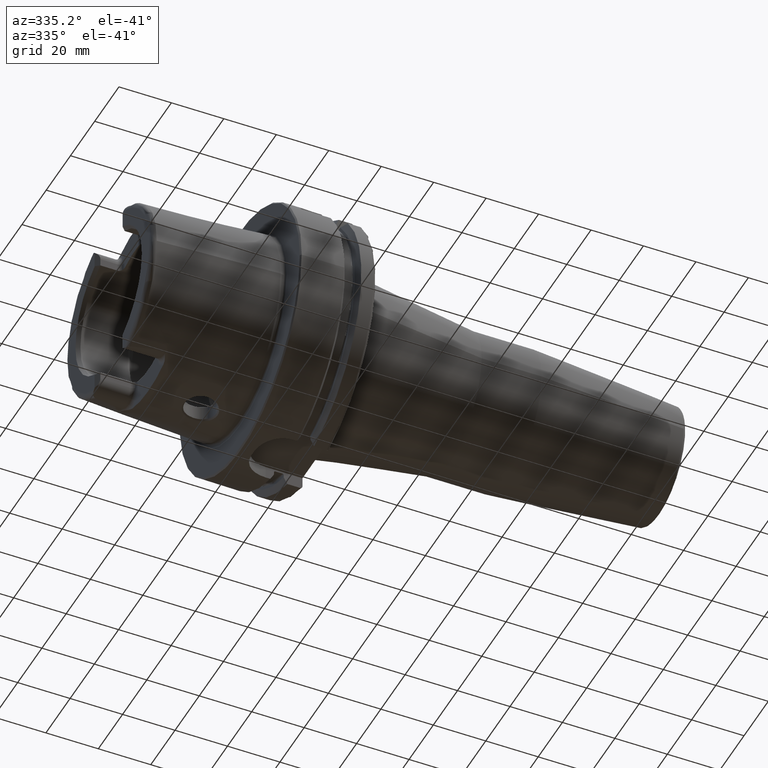
[diagram: clean part render]
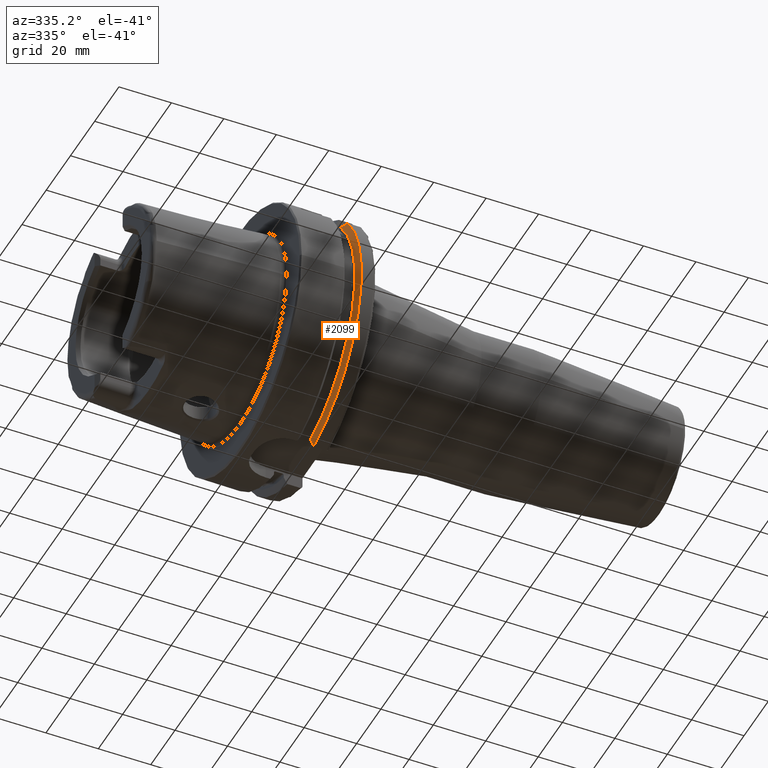
[diagram: same view with one face highlighted and labeled with its STEP entity id]
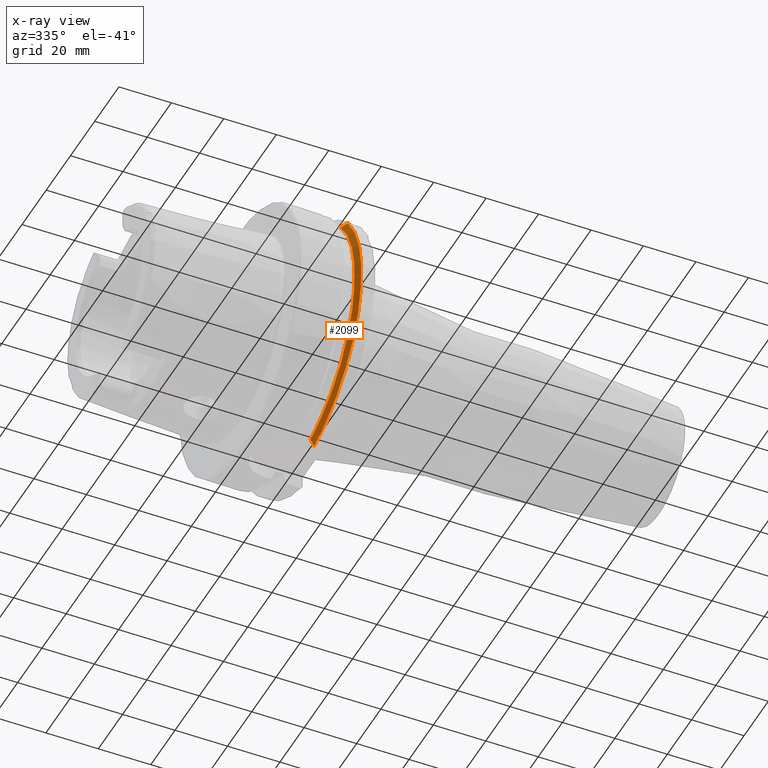
[diagram: x-ray of the same camera — body ghosted, the highlighted face saturated]
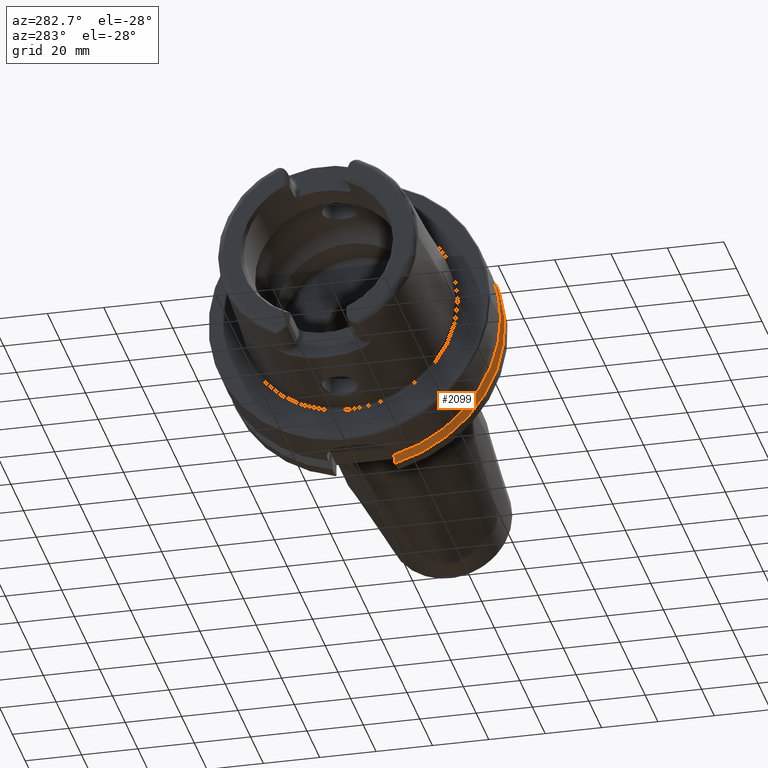
[diagram: same view with one face highlighted and labeled with its STEP entity id]
A machine part, auxiliary view. The second image highlights one B-rep face of the part: STEP entity #2099.
The next image is the same camera in x-ray: the body ghosted, the highlighted face saturated — about 0% of this face is hidden behind the body in this view.
A second angle (auxiliary view) of the same face is appended — the face is thin or edge-on in the first view.
In plain terms, the highlighted conical surface has half-angle 60 deg.
Its self-contained STEP definition (entity closure, byte-faithful):
#20=(
BOUNDED_CURVE()
B_SPLINE_CURVE(2,(#4000,#4001,#4002),.UNSPECIFIED.,.F.,.F.)
B_SPLINE_CURVE_WITH_KNOTS((3,3),(0.,0.343884390880419),.UNSPECIFIED.)
CURVE()
GEOMETRIC_REPRESENTATION_ITEM()
RATIONAL_B_SPLINE_CURVE((1.,1.00052016257005,1.))
REPRESENTATION_ITEM('')
);
#25=(
BOUNDED_CURVE()
B_SPLINE_CURVE(2,(#4215,#4216,#4217),.UNSPECIFIED.,.F.,.F.)
B_SPLINE_CURVE_WITH_KNOTS((3,3),(0.,0.28292349080556),.UNSPECIFIED.)
CURVE()
GEOMETRIC_REPRESENTATION_ITEM()
RATIONAL_B_SPLINE_CURVE((1.,1.0003193410929,1.))
REPRESENTATION_ITEM('')
);
#324=FACE_OUTER_BOUND('',#457,.T.);
#457=EDGE_LOOP('',(#1946,#1947,#1948,#1949));
#751=CIRCLE('',#2271,50.);
#803=CIRCLE('',#2376,47.5975952641917);
#929=VERTEX_POINT('',#3997);
#930=VERTEX_POINT('',#3999);
#964=VERTEX_POINT('',#4212);
#965=VERTEX_POINT('',#4214);
#1173=EDGE_CURVE('',#930,#929,#20,.T.);
#1223=EDGE_CURVE('',#965,#964,#25,.T.);
#1239=EDGE_CURVE('',#930,#964,#751,.T.);
#1324=EDGE_CURVE('',#929,#965,#803,.T.);
#1946=ORIENTED_EDGE('',*,*,#1173,.T.);
#1947=ORIENTED_EDGE('',*,*,#1324,.T.);
#1948=ORIENTED_EDGE('',*,*,#1223,.T.);
#1949=ORIENTED_EDGE('',*,*,#1239,.F.);
#1981=CONICAL_SURFACE('',#2377,48.7987976320958,1.0471975511966);
#2099=ADVANCED_FACE('',(#324),#1981,.T.);
#2271=AXIS2_PLACEMENT_3D('',#4277,#2759,#2760);
#2376=AXIS2_PLACEMENT_3D('',#4521,#2993,#2994);
#2377=AXIS2_PLACEMENT_3D('',#4522,#2995,#2996);
#2759=DIRECTION('center_axis',(1.,0.,0.));
#2760=DIRECTION('ref_axis',(0.,0.,-1.));
#2993=DIRECTION('center_axis',(1.,0.,0.));
#2994=DIRECTION('ref_axis',(0.,0.,-1.));
#2995=DIRECTION('center_axis',(1.,0.,0.));
#2996=DIRECTION('ref_axis',(0.,-0.951449961441176,-0.307803461438603));
#3997=CARTESIAN_POINT('',(21.875,-35.6830642593065,31.5));
#3999=CARTESIAN_POINT('',(23.2620290209214,-38.8297566307078,31.5));
#4000=CARTESIAN_POINT('Ctrl Pts',(23.2620290209214,-38.8297566307078,31.5));
#4001=CARTESIAN_POINT('Ctrl Pts',(22.5392272442767,-37.2176818849707,31.5));
#4002=CARTESIAN_POINT('Ctrl Pts',(21.875,-35.6830642593065,31.5));
#4212=CARTESIAN_POINT('',(23.2620290209214,-11.,-48.7749935930288));
#4214=CARTESIAN_POINT('',(21.875,-11.,-46.3090819919138));
#4215=CARTESIAN_POINT('Ctrl Pts',(21.875,-11.,-46.3090819919138));
#4216=CARTESIAN_POINT('Ctrl Pts',(22.5505288964237,-11.,-47.5116880808802));
#4217=CARTESIAN_POINT('Ctrl Pts',(23.2620290209214,-11.,-48.7749935930288));
#4277=CARTESIAN_POINT('Origin',(23.2620290209214,0.,0.));
#4521=CARTESIAN_POINT('Origin',(21.875,0.,0.));
#4522=CARTESIAN_POINT('Origin',(22.5685145104607,0.,0.));